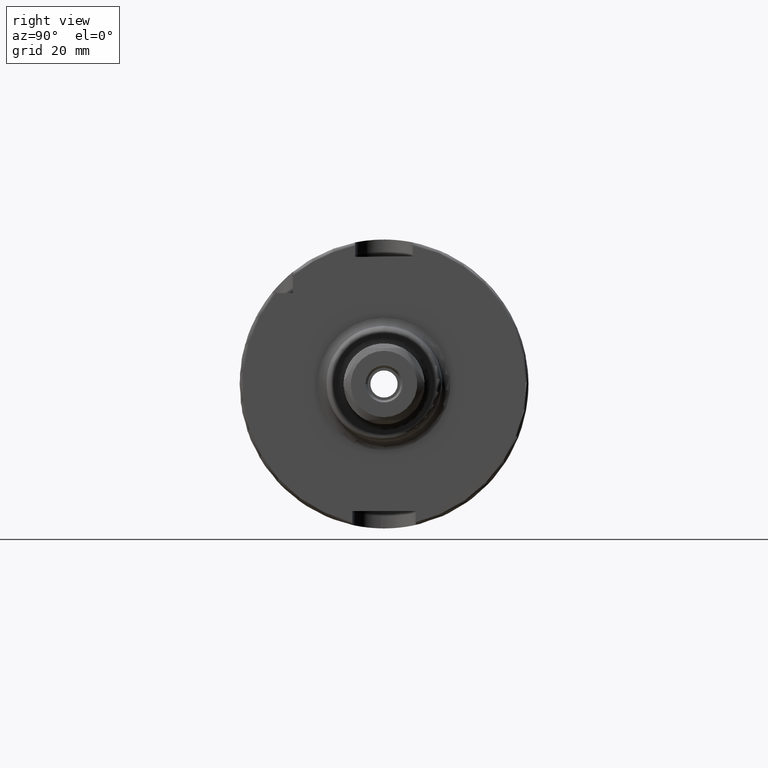
[diagram: clean part render]
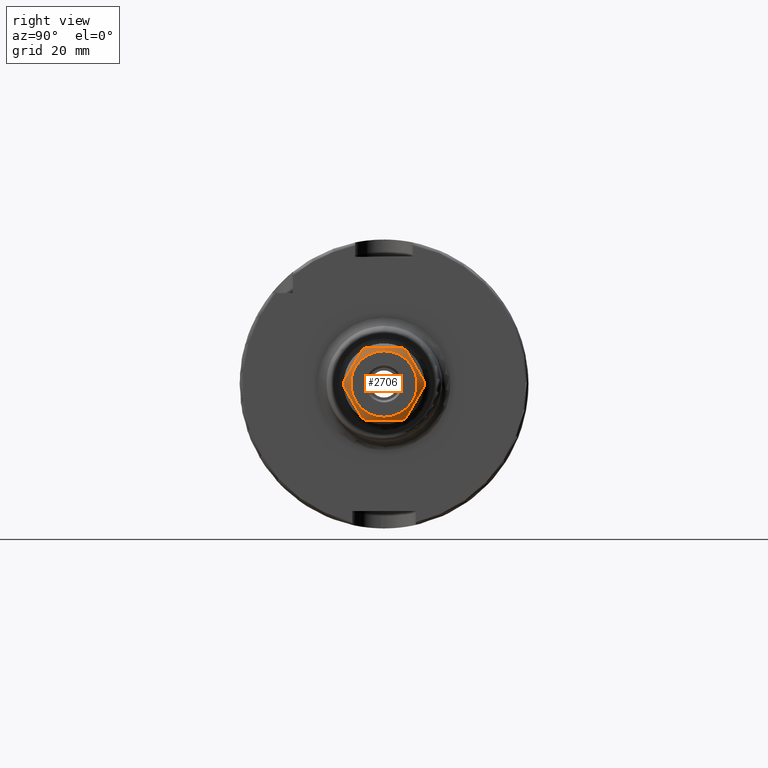
[diagram: same view with one face highlighted and labeled with its STEP entity id]
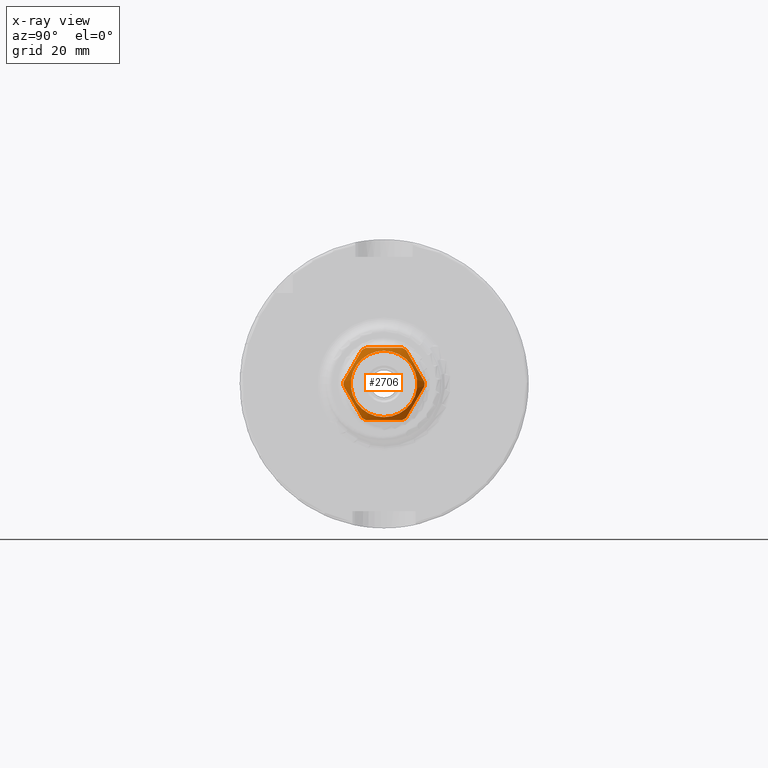
[diagram: x-ray of the same camera — body ghosted, the highlighted face saturated]
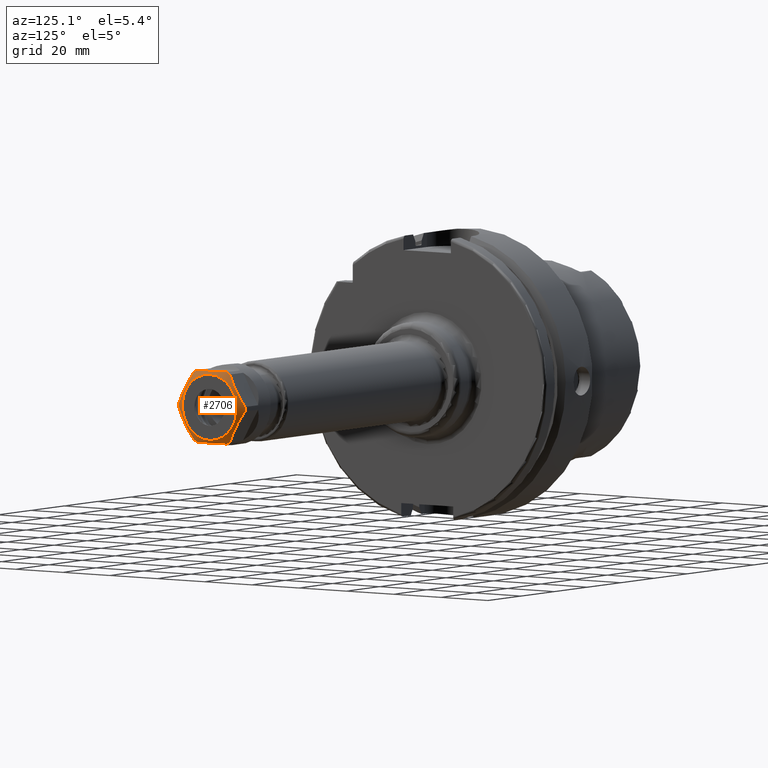
[diagram: same view with one face highlighted and labeled with its STEP entity id]
A machine part, right view. The second image highlights one B-rep face of the part: STEP entity #2706.
The next image is the same camera in x-ray: the body ghosted, the highlighted face saturated — about 0% of this face is hidden behind the body in this view.
A second angle (auxiliary view) of the same face is appended — the face is thin or edge-on in the first view.
In plain terms, the highlighted conical surface has half-angle 60 deg.
Its self-contained STEP definition (entity closure, byte-faithful):
#79=(
BOUNDED_CURVE()
B_SPLINE_CURVE(2,(#5570,#5571,#5572),.UNSPECIFIED.,.F.,.F.)
B_SPLINE_CURVE_WITH_KNOTS((3,3),(1.76676018698455,2.8268759330768),
 .UNSPECIFIED.)
CURVE()
GEOMETRIC_REPRESENTATION_ITEM()
RATIONAL_B_SPLINE_CURVE((1.5788725780361,1.67360493271826,1.67360493271826))
REPRESENTATION_ITEM('')
);
#80=(
BOUNDED_CURVE()
B_SPLINE_CURVE(2,(#5576,#5577,#5578),.UNSPECIFIED.,.F.,.F.)
B_SPLINE_CURVE_WITH_KNOTS((3,3),(1.76676018698417,3.88699167916846),
 .UNSPECIFIED.)
CURVE()
GEOMETRIC_REPRESENTATION_ITEM()
RATIONAL_B_SPLINE_CURVE((1.57887257803575,1.76833728739999,1.57887257803583))
REPRESENTATION_ITEM('')
);
#81=(
BOUNDED_CURVE()
B_SPLINE_CURVE(2,(#5582,#5583,#5584),.UNSPECIFIED.,.F.,.F.)
B_SPLINE_CURVE_WITH_KNOTS((3,3),(1.76676018698458,3.88699167916981),
 .UNSPECIFIED.)
CURVE()
GEOMETRIC_REPRESENTATION_ITEM()
RATIONAL_B_SPLINE_CURVE((1.57887257803629,1.76833728740072,1.5788725780362))
REPRESENTATION_ITEM('')
);
#82=(
BOUNDED_CURVE()
B_SPLINE_CURVE(2,(#5588,#5589,#5590),.UNSPECIFIED.,.F.,.F.)
B_SPLINE_CURVE_WITH_KNOTS((3,3),(-3.88699167916905,-1.76676018698455),
 .UNSPECIFIED.)
CURVE()
GEOMETRIC_REPRESENTATION_ITEM()
RATIONAL_B_SPLINE_CURVE((1.5788725780361,1.76833728740041,1.5788725780361))
REPRESENTATION_ITEM('')
);
#83=(
BOUNDED_CURVE()
B_SPLINE_CURVE(2,(#5594,#5595,#5596),.UNSPECIFIED.,.F.,.F.)
B_SPLINE_CURVE_WITH_KNOTS((3,3),(1.76676018698417,3.88699167916846),
 .UNSPECIFIED.)
CURVE()
GEOMETRIC_REPRESENTATION_ITEM()
RATIONAL_B_SPLINE_CURVE((1.57887257803575,1.76833728739999,1.57887257803583))
REPRESENTATION_ITEM('')
);
#84=(
BOUNDED_CURVE()
B_SPLINE_CURVE(2,(#5600,#5601,#5602),.UNSPECIFIED.,.F.,.F.)
B_SPLINE_CURVE_WITH_KNOTS((3,3),(1.76676018698458,3.88699167916981),
 .UNSPECIFIED.)
CURVE()
GEOMETRIC_REPRESENTATION_ITEM()
RATIONAL_B_SPLINE_CURVE((1.57887257803629,1.76833728740072,1.5788725780362))
REPRESENTATION_ITEM('')
);
#85=(
BOUNDED_CURVE()
B_SPLINE_CURVE(2,(#5605,#5606,#5607),.UNSPECIFIED.,.F.,.F.)
B_SPLINE_CURVE_WITH_KNOTS((3,3),(2.8268759330768,3.88699167916905),
 .UNSPECIFIED.)
CURVE()
GEOMETRIC_REPRESENTATION_ITEM()
RATIONAL_B_SPLINE_CURVE((1.67360493271826,1.67360493271826,1.5788725780361))
REPRESENTATION_ITEM('')
);
#176=CONICAL_SURFACE('',#3102,12.74999999999,1.0471975511966);
#421=FACE_OUTER_BOUND('',#593,.T.);
#593=EDGE_LOOP('',(#2434,#2435,#2436,#2437,#2438,#2439,#2440,#2441,#2442,
#2443,#2444,#2445,#2446,#2447,#2448,#2449));
#729=LINE('',#5608,#871);
#871=VECTOR('',#3884,12.74999999999);
#1052=CIRCLE('',#3101,11.5);
#1053=CIRCLE('',#3103,14.);
#1054=CIRCLE('',#3104,14.);
#1055=CIRCLE('',#3105,14.);
#1056=CIRCLE('',#3106,14.);
#1057=CIRCLE('',#3107,14.);
#1058=CIRCLE('',#3108,14.);
#1293=VERTEX_POINT('',#5565);
#1294=VERTEX_POINT('',#5568);
#1295=VERTEX_POINT('',#5569);
#1296=VERTEX_POINT('',#5573);
#1297=VERTEX_POINT('',#5575);
#1298=VERTEX_POINT('',#5579);
#1299=VERTEX_POINT('',#5581);
#1300=VERTEX_POINT('',#5585);
#1301=VERTEX_POINT('',#5587);
#1302=VERTEX_POINT('',#5591);
#1303=VERTEX_POINT('',#5593);
#1304=VERTEX_POINT('',#5597);
#1305=VERTEX_POINT('',#5599);
#1306=VERTEX_POINT('',#5603);
#1678=EDGE_CURVE('',#1293,#1293,#1052,.T.);
#1679=EDGE_CURVE('',#1294,#1295,#79,.T.);
#1680=EDGE_CURVE('',#1294,#1296,#1053,.T.);
#1681=EDGE_CURVE('',#1297,#1296,#80,.T.);
#1682=EDGE_CURVE('',#1297,#1298,#1054,.T.);
#1683=EDGE_CURVE('',#1299,#1298,#81,.T.);
#1684=EDGE_CURVE('',#1299,#1300,#1055,.T.);
#1685=EDGE_CURVE('',#1301,#1300,#82,.F.);
#1686=EDGE_CURVE('',#1301,#1302,#1056,.T.);
#1687=EDGE_CURVE('',#1303,#1302,#83,.T.);
#1688=EDGE_CURVE('',#1303,#1304,#1057,.T.);
#1689=EDGE_CURVE('',#1305,#1304,#84,.T.);
#1690=EDGE_CURVE('',#1305,#1306,#1058,.T.);
#1691=EDGE_CURVE('',#1295,#1306,#85,.T.);
#1692=EDGE_CURVE('',#1295,#1293,#729,.T.);
#2434=ORIENTED_EDGE('',*,*,#1679,.F.);
#2435=ORIENTED_EDGE('',*,*,#1680,.T.);
#2436=ORIENTED_EDGE('',*,*,#1681,.F.);
#2437=ORIENTED_EDGE('',*,*,#1682,.T.);
#2438=ORIENTED_EDGE('',*,*,#1683,.F.);
#2439=ORIENTED_EDGE('',*,*,#1684,.T.);
#2440=ORIENTED_EDGE('',*,*,#1685,.F.);
#2441=ORIENTED_EDGE('',*,*,#1686,.T.);
#2442=ORIENTED_EDGE('',*,*,#1687,.F.);
#2443=ORIENTED_EDGE('',*,*,#1688,.T.);
#2444=ORIENTED_EDGE('',*,*,#1689,.F.);
#2445=ORIENTED_EDGE('',*,*,#1690,.T.);
#2446=ORIENTED_EDGE('',*,*,#1691,.F.);
#2447=ORIENTED_EDGE('',*,*,#1692,.T.);
#2448=ORIENTED_EDGE('',*,*,#1678,.F.);
#2449=ORIENTED_EDGE('',*,*,#1692,.F.);
#2706=ADVANCED_FACE('',(#421),#176,.T.);
#3101=AXIS2_PLACEMENT_3D('',#5566,#3868,#3869);
#3102=AXIS2_PLACEMENT_3D('',#5567,#3870,#3871);
#3103=AXIS2_PLACEMENT_3D('',#5574,#3872,#3873);
#3104=AXIS2_PLACEMENT_3D('',#5580,#3874,#3875);
#3105=AXIS2_PLACEMENT_3D('',#5586,#3876,#3877);
#3106=AXIS2_PLACEMENT_3D('',#5592,#3878,#3879);
#3107=AXIS2_PLACEMENT_3D('',#5598,#3880,#3881);
#3108=AXIS2_PLACEMENT_3D('',#5604,#3882,#3883);
#3868=DIRECTION('center_axis',(1.,0.,0.));
#3869=DIRECTION('ref_axis',(0.,0.,1.));
#3870=DIRECTION('center_axis',(-1.,0.,0.));
#3871=DIRECTION('ref_axis',(0.,0.,-1.));
#3872=DIRECTION('center_axis',(1.,0.,0.));
#3873=DIRECTION('ref_axis',(0.,-0.450340007604224,0.892857142857147));
#3874=DIRECTION('center_axis',(1.,0.,0.));
#3875=DIRECTION('ref_axis',(0.,-0.998406971466793,0.0564226845028296));
#3876=DIRECTION('center_axis',(1.,0.,0.));
#3877=DIRECTION('ref_axis',(0.,-0.548066963862595,-0.836434458354292));
#3878=DIRECTION('center_axis',(1.,0.,0.));
#3879=DIRECTION('ref_axis',(0.,0.450340007604224,-0.892857142857147));
#3880=DIRECTION('center_axis',(1.,0.,0.));
#3881=DIRECTION('ref_axis',(0.,0.998406971466793,-0.0564226845028296));
#3882=DIRECTION('center_axis',(1.,0.,0.));
#3883=DIRECTION('ref_axis',(0.,0.548066963862595,0.836434458354292));
#3884=DIRECTION('',(0.5,-1.06057523872491E-16,-0.866025403784439));
#5565=CARTESIAN_POINT('',(8.75,0.,11.5));
#5566=CARTESIAN_POINT('Origin',(8.75,0.,0.));
#5567=CARTESIAN_POINT('Origin',(8.028312163517,0.,0.));
#5568=CARTESIAN_POINT('',(7.306624327026,-6.304760106459,12.5));
#5569=CARTESIAN_POINT('',(8.17264973080863,7.65404249467096E-16,12.5));
#5570=CARTESIAN_POINT('Ctrl Pts',(7.30662432702432,-6.30476010645877,12.5));
#5571=CARTESIAN_POINT('Ctrl Pts',(8.17264973080863,-2.97394344644284,12.5));
#5572=CARTESIAN_POINT('Ctrl Pts',(8.17264973080863,0.,12.5));
#5573=CARTESIAN_POINT('',(7.306624327026,-7.672937494076,11.71008241696));
#5574=CARTESIAN_POINT('Origin',(7.306624327026,0.,0.));
#5575=CARTESIAN_POINT('',(7.306624327026,-13.97769760054,0.7899175830396));
#5576=CARTESIAN_POINT('Ctrl Pts',(7.30662432702171,-13.9776976005394,0.789917583040281));
#5577=CARTESIAN_POINT('Ctrl Pts',(8.94588669847094,-10.8253175473094,6.25000000000109));
#5578=CARTESIAN_POINT('Ctrl Pts',(7.30662432702252,-7.67293749407968,11.7100824169614));
#5579=CARTESIAN_POINT('',(7.306624327026,-13.97769760054,-0.7899175830396));
#5580=CARTESIAN_POINT('Origin',(7.306624327026,0.,0.));
#5581=CARTESIAN_POINT('',(7.306624327026,-7.672937494076,-11.71008241696));
#5582=CARTESIAN_POINT('Ctrl Pts',(7.30662432702559,-7.67293749407382,-11.7100824169588));
#5583=CARTESIAN_POINT('Ctrl Pts',(8.94588669847502,-10.8253175473039,-6.24999999999791));
#5584=CARTESIAN_POINT('Ctrl Pts',(7.30662432702476,-13.9776976005343,-0.789917583036417));
#5585=CARTESIAN_POINT('',(7.306624327026,-6.304760106459,-12.5));
#5586=CARTESIAN_POINT('Origin',(7.306624327026,0.,0.));
#5587=CARTESIAN_POINT('',(7.306624327026,6.304760106459,-12.5));
#5588=CARTESIAN_POINT('Ctrl Pts',(7.30662432702432,-6.30476010645876,-12.5));
#5589=CARTESIAN_POINT('Ctrl Pts',(8.94588669847321,3.5527136788005E-15,
-12.5));
#5590=CARTESIAN_POINT('Ctrl Pts',(7.30662432702432,6.30476010645877,-12.5));
#5591=CARTESIAN_POINT('',(7.306624327026,7.672937494076,-11.71008241696));
#5592=CARTESIAN_POINT('Origin',(7.306624327026,0.,0.));
#5593=CARTESIAN_POINT('',(7.306624327026,13.97769760054,-0.7899175830396));
#5594=CARTESIAN_POINT('Ctrl Pts',(7.30662432702171,13.9776976005394,-0.789917583040281));
#5595=CARTESIAN_POINT('Ctrl Pts',(8.94588669847094,10.8253175473094,-6.25000000000109));
#5596=CARTESIAN_POINT('Ctrl Pts',(7.30662432702252,7.67293749407968,-11.7100824169614));
#5597=CARTESIAN_POINT('',(7.306624327026,13.97769760054,0.7899175830396));
#5598=CARTESIAN_POINT('Origin',(7.306624327026,0.,0.));
#5599=CARTESIAN_POINT('',(7.306624327026,7.672937494076,11.71008241696));
#5600=CARTESIAN_POINT('Ctrl Pts',(7.30662432702559,7.67293749407382,11.7100824169588));
#5601=CARTESIAN_POINT('Ctrl Pts',(8.94588669847502,10.8253175473039,6.24999999999791));
#5602=CARTESIAN_POINT('Ctrl Pts',(7.30662432702476,13.9776976005343,0.789917583036417));
#5603=CARTESIAN_POINT('',(7.306624327026,6.304760106459,12.5));
#5604=CARTESIAN_POINT('Origin',(7.306624327026,0.,0.));
#5605=CARTESIAN_POINT('Ctrl Pts',(8.17264973080863,0.,12.5));
#5606=CARTESIAN_POINT('Ctrl Pts',(8.17264973080863,2.97394344644284,12.5));
#5607=CARTESIAN_POINT('Ctrl Pts',(7.30662432702432,6.30476010645876,12.5));
#5608=CARTESIAN_POINT('',(8.028312163517,1.56142466891165E-15,12.74999999999));